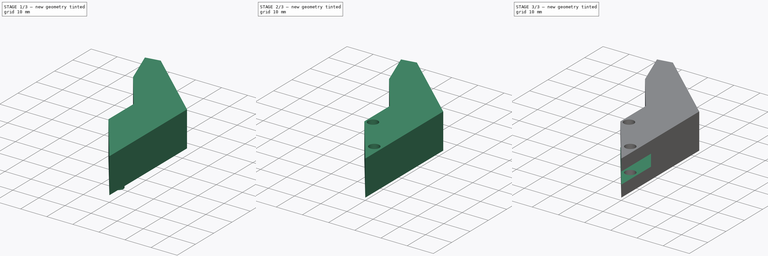
[diagram: build sequence overview — one tinted view per stage of 3, left to right]
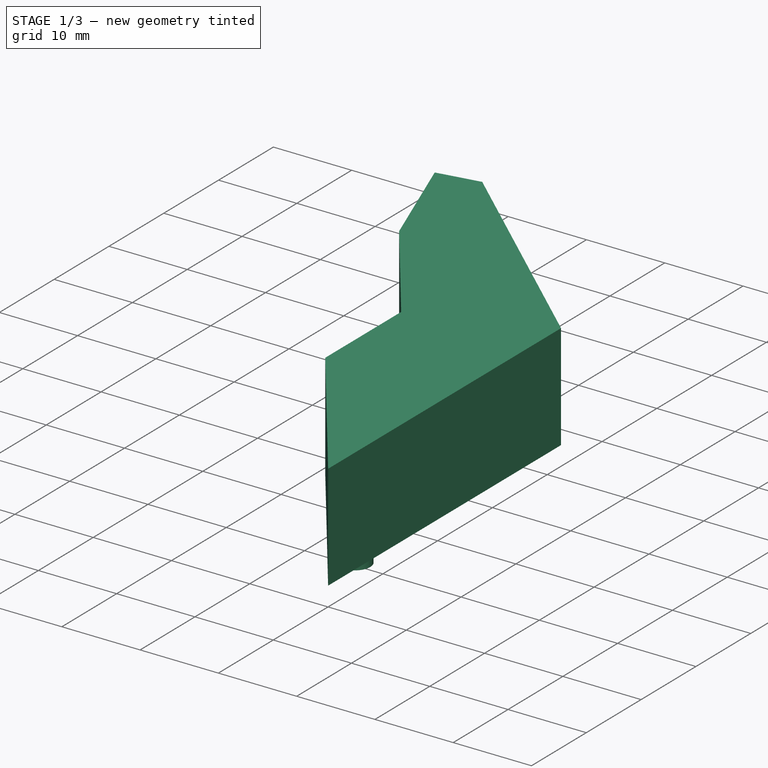
[diagram: stage 1 of 3 — iso view after this stage's code; geometry added in this stage tinted green]
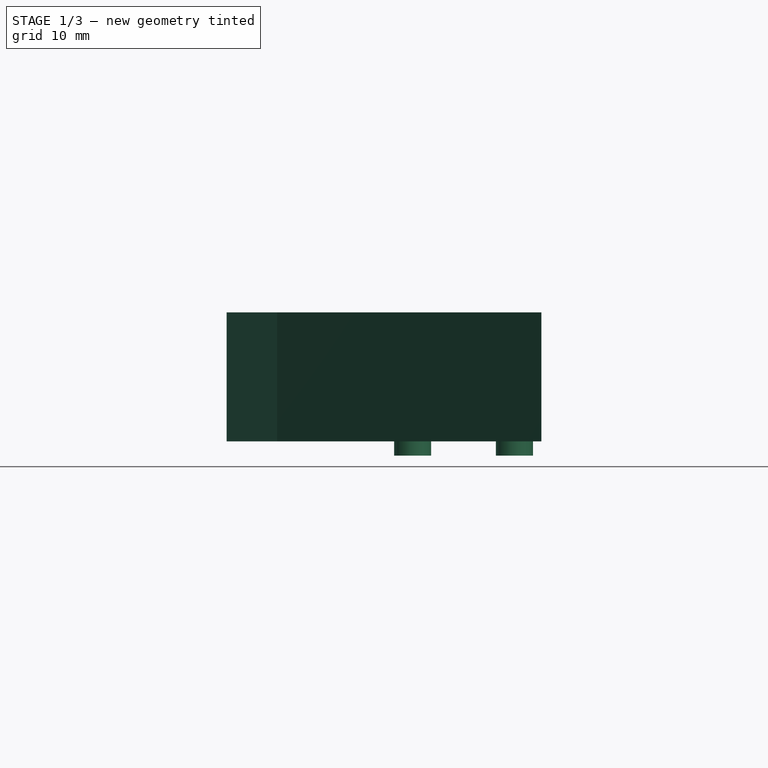
[diagram: stage 1 of 3 — front view after this stage's code; geometry added in this stage tinted green]
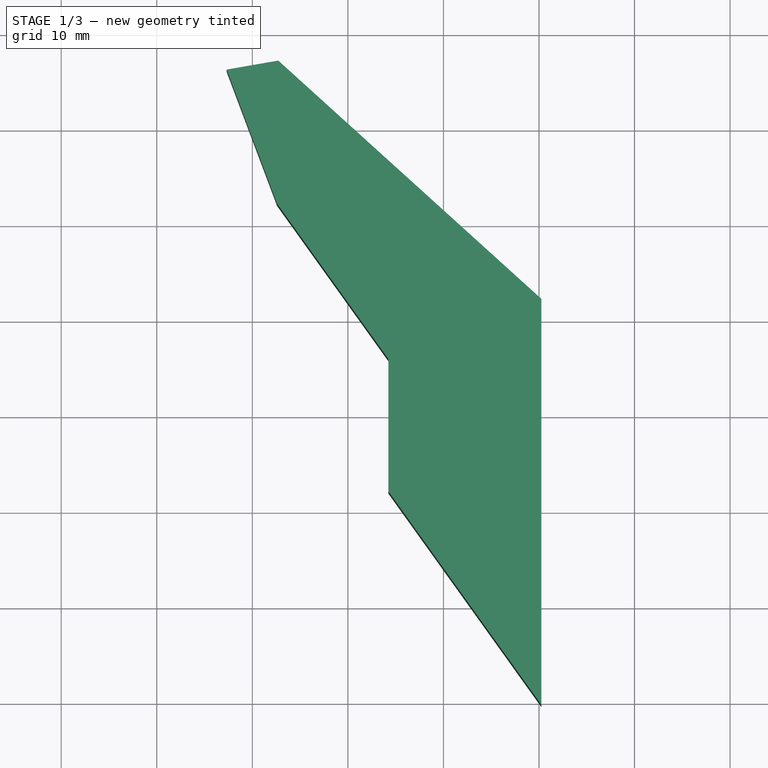
[diagram: stage 1 of 3 — top view after this stage's code; geometry added in this stage tinted green]
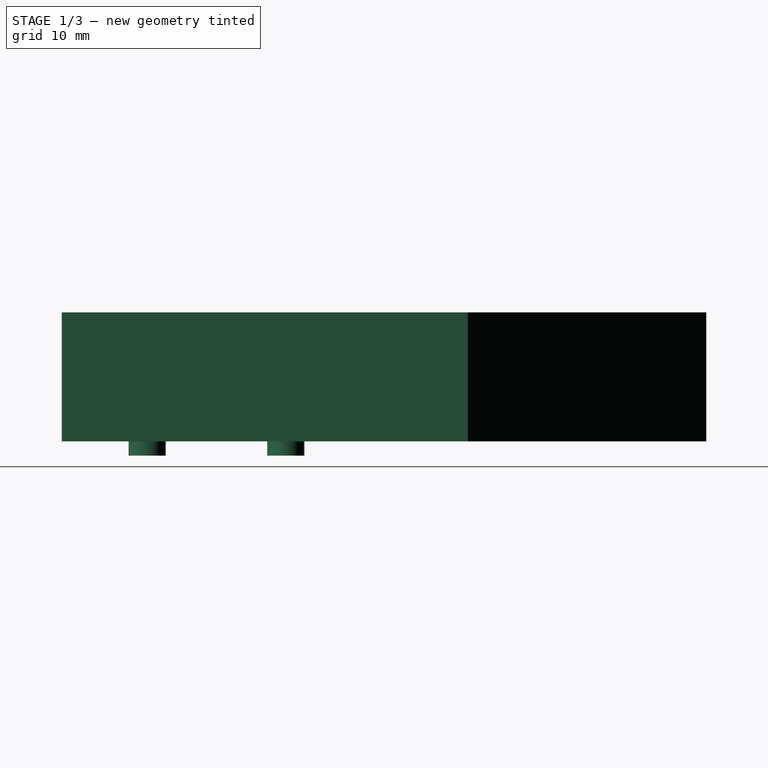
[diagram: stage 1 of 3 — right view after this stage's code; geometry added in this stage tinted green]
FCSTD DOCUMENT  (FreeCAD 0.20R29410 (Git))
Label: Eslabon3.1
License: All rights reserved
LicenseURL: http://en.wikipedia.org/wiki/All_rights_reserved
objects: Sketcher::SketchObject×3, Part::Extrusion×3, Part::Cut×2
note: 8 computed .brp shape members not serialized (recipe doc carries the construction recipe); baked Part::Feature solids carry a one-line shape summary decoded from their .brp

FEATURE [Sketcher::SketchObject] Sketch002  label="Holes r1.94mm"
  FullyConstrained = false
  MapMode = 5
  Placement = pos=(0,0,13.5) rot=(0,0,1;0rad)
  sketch-geometry (2):
    g0: Circle CenterX=36.7751 CenterY=43.1053 CenterZ=0 NormalX=0 NormalY=0 NormalZ=1 AngleXU=0 Radius=1.94
    g1: Circle CenterX=47.4316 CenterY=28.5988 CenterZ=0 NormalX=0 NormalY=0 NormalZ=1 AngleXU=0 Radius=1.94
  constraints (3):
    c: Radius(g0) = 1.94
    c: Equal(g0,g1)
    c: Distance(g0,g1) = 18
FEATURE [Part::Extrusion] Extrude002
  Base = -> Sketch002
  Dir = (0,0,1)
  DirMode = 2
  FaceMakerClass = Part::FaceMakerBullseye
  LengthFwd = 15
  LengthRev = 0
  Reversed = true
  Solid = true
  Symmetric = false
FEATURE [Part::Extrusion] Extrude
  Base = -> Sketch
  Dir = (0,0,1)
  DirMode = 2
  FaceMakerClass = Part::FaceMakerBullseye
  LengthFwd = 13.5
  LengthRev = 0
  Solid = true
  Symmetric = false
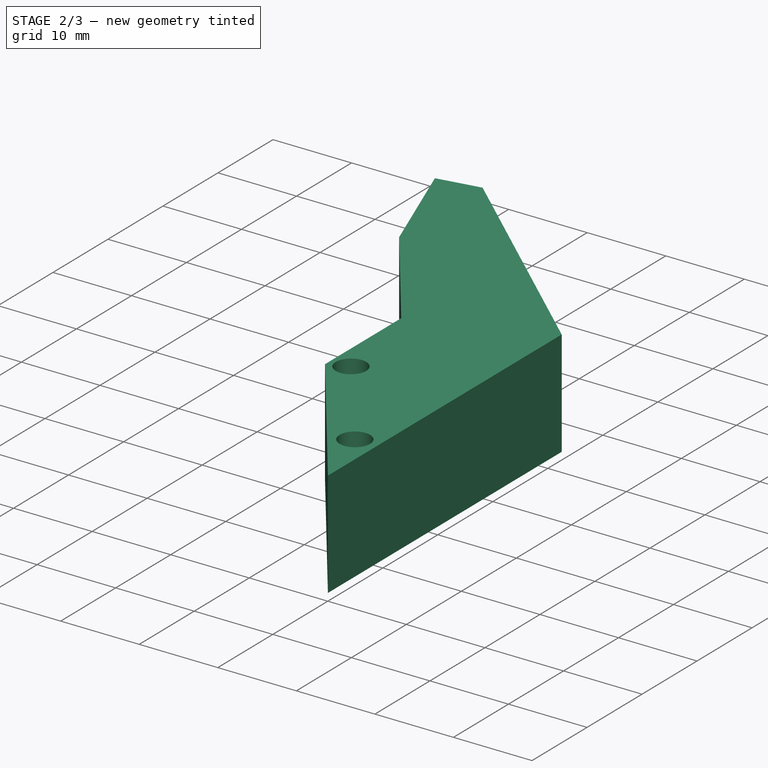
[diagram: stage 2 of 3 — iso view after this stage's code; geometry added in this stage tinted green]
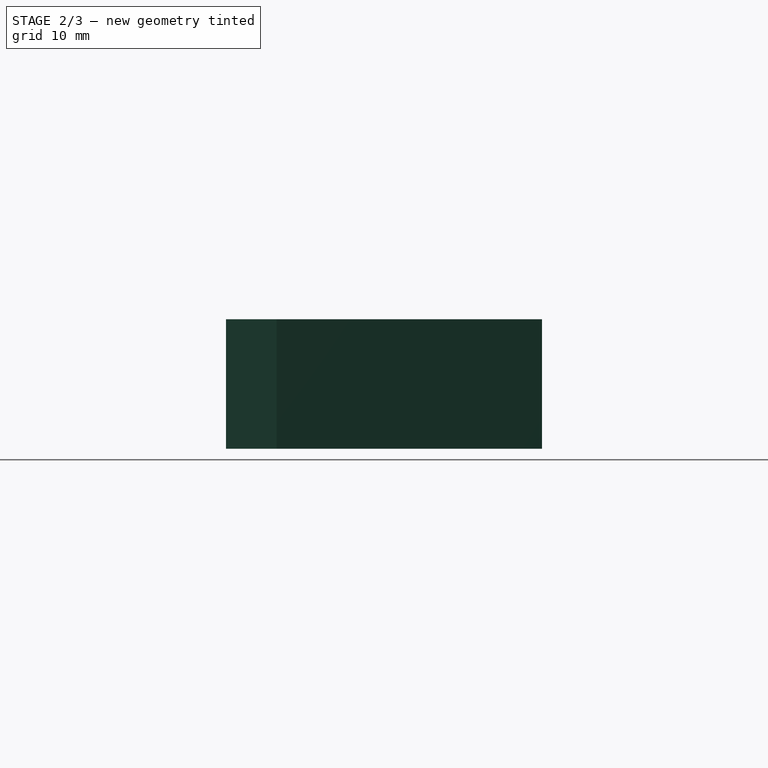
[diagram: stage 2 of 3 — front view after this stage's code; geometry added in this stage tinted green]
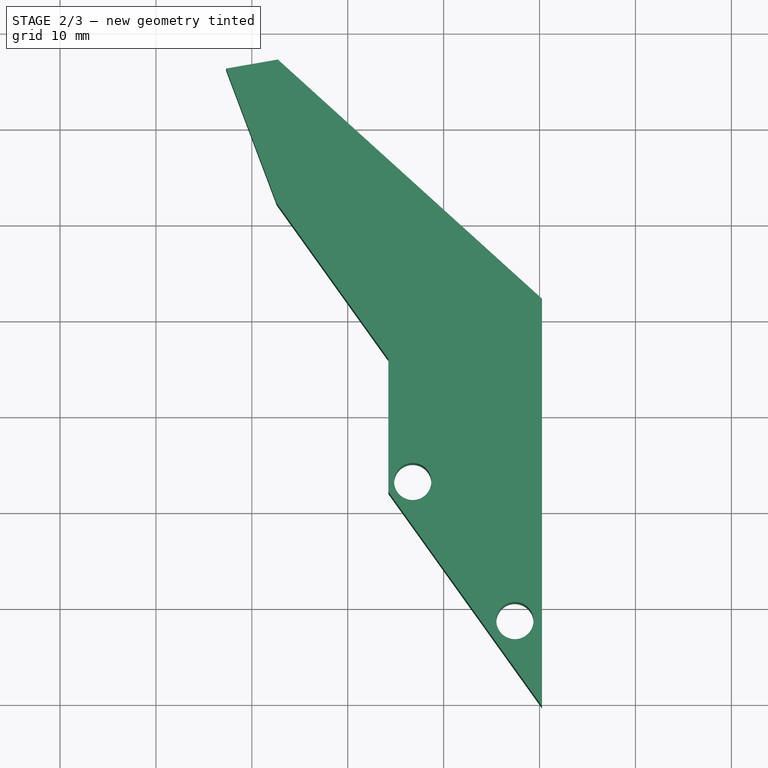
[diagram: stage 2 of 3 — top view after this stage's code; geometry added in this stage tinted green]
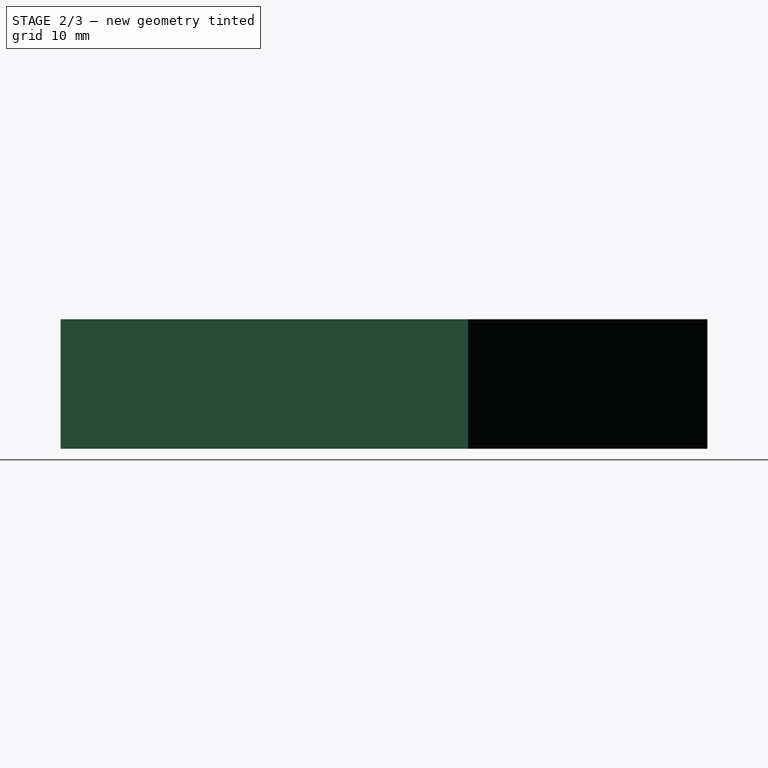
[diagram: stage 2 of 3 — right view after this stage's code; geometry added in this stage tinted green]
FEATURE [Part::Cut] Cut
  Base = -> Extrude
  Refine = true
  Tool = -> Extrude002
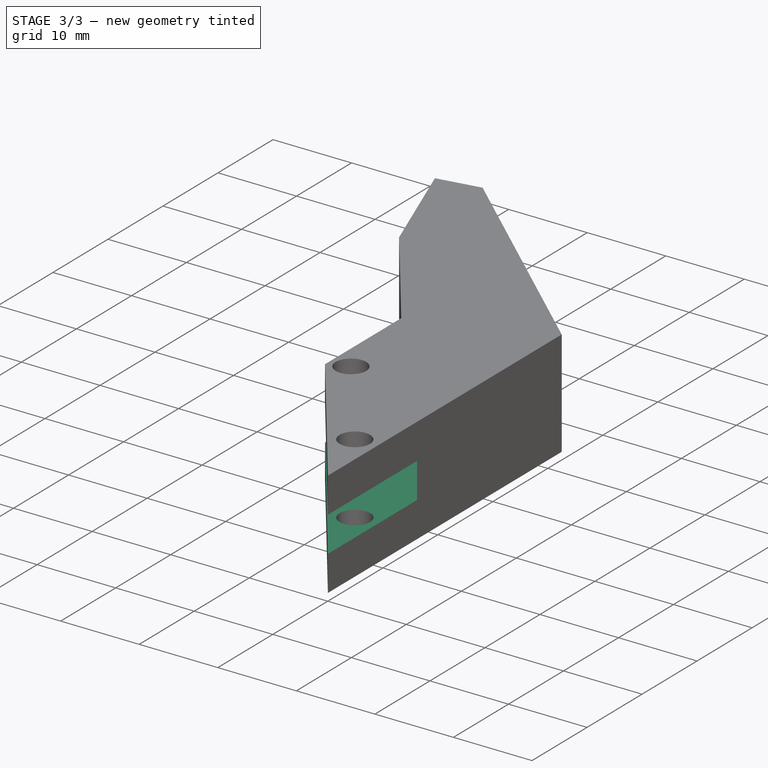
[diagram: stage 3 of 3 — iso view after this stage's code; geometry added in this stage tinted green]
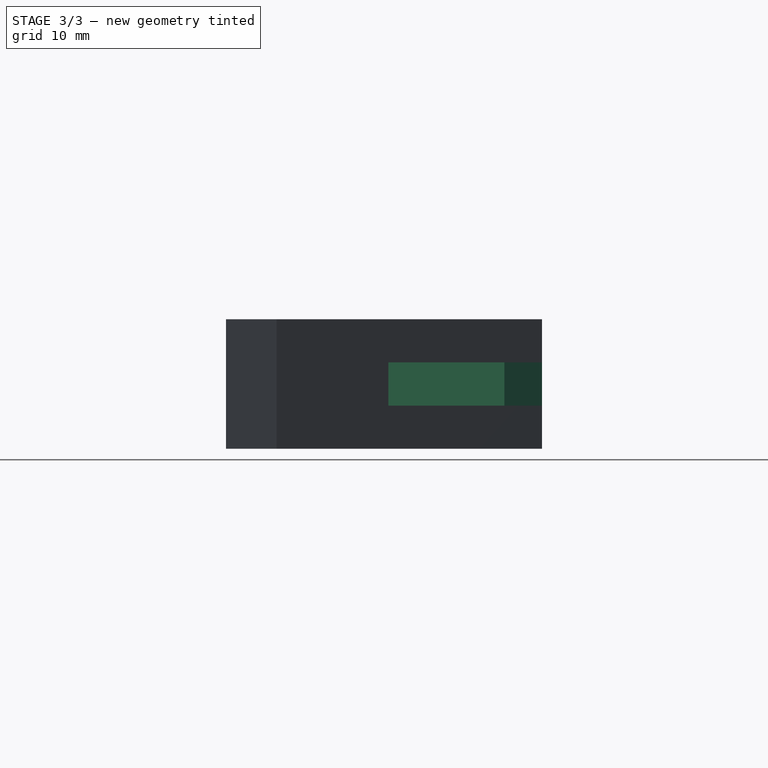
[diagram: stage 3 of 3 — front view after this stage's code; geometry added in this stage tinted green]
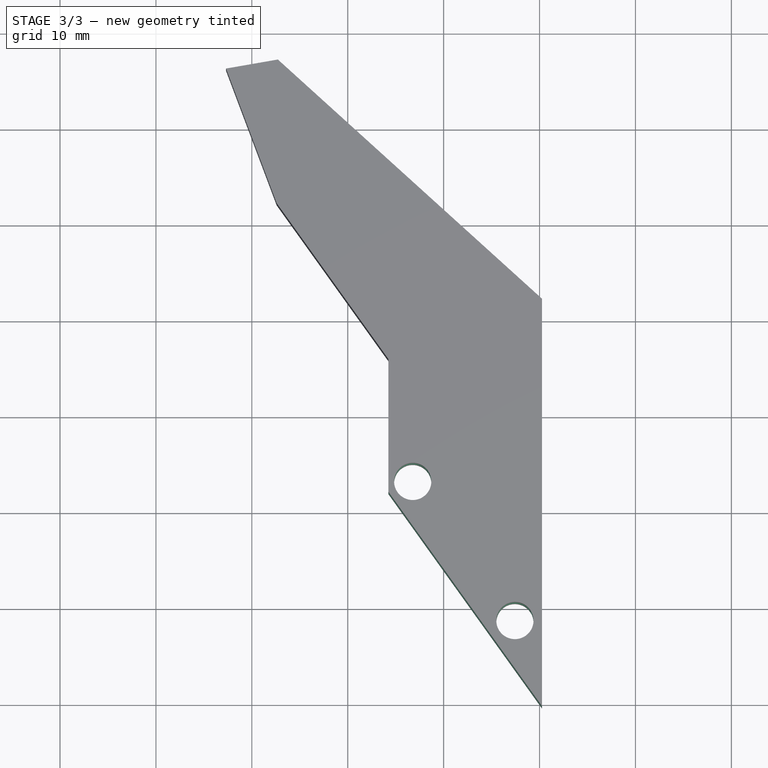
[diagram: stage 3 of 3 — top view after this stage's code; geometry added in this stage tinted green]
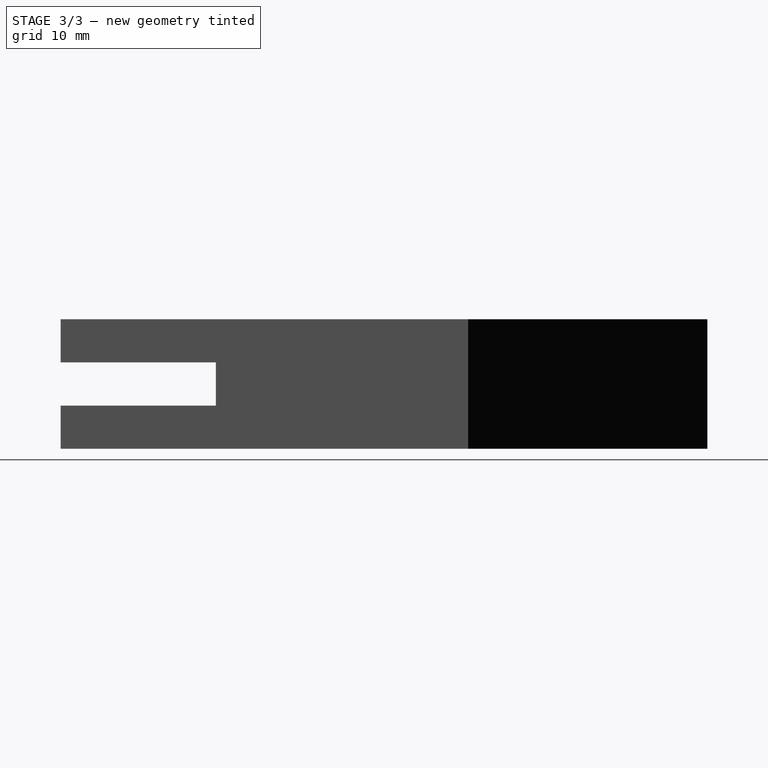
[diagram: stage 3 of 3 — right view after this stage's code; geometry added in this stage tinted green]
FEATURE [Sketcher::SketchObject] Sketch  label="Grip1"
  FullyConstrained = false
  sketch-geometry (7):
    g0: LineSegment StartX=34.2391 StartY=42.0149 StartZ=0 EndX=50.2553 EndY=19.6602 EndZ=0
    g1: LineSegment StartX=17.3085 StartY=86.1627 StartZ=0 EndX=22.7165 EndY=87.1049 EndZ=0
    g2: LineSegment StartX=22.7165 StartY=87.1049 StartZ=0 EndX=50.2553 EndY=62.1602 EndZ=0
    g3: LineSegment StartX=50.2553 StartY=62.1602 StartZ=0 EndX=50.2553 EndY=19.6602 EndZ=0
    g4: LineSegment StartX=17.3085 StartY=86.1627 StartZ=0 EndX=22.591 EndY=72.1236 EndZ=0
    g5: LineSegment StartX=22.591 StartY=72.1236 StartZ=0 EndX=34.2391 EndY=55.8657 EndZ=0
    g6: LineSegment StartX=34.2391 StartY=55.8657 StartZ=0 EndX=34.2391 EndY=42.0149 EndZ=0
  constraints (16):
    c: Distance(g0) = 27.5
    c: Coincident(g2,g1)
    c: Coincident(g3,g2)
    c: Vertical(g3)
    c: Coincident(g4,g1)
    c: Coincident(g6,g5)
    c: Vertical(g6)
    c: Coincident(g5,g4)
    c: Distance(g3) = 42.5
    c: Distance(g4) = 15
    c: Angle(g5,g4) = 2.87979
    c: Angle(g3,g0) = 0.621686
    c: Coincident(g0,g6)
    c: Coincident(g3,g0)
    c: Parallel(g0,g5)
    c: Distance(g5) = 20
FEATURE [Sketcher::SketchObject] Sketch001  label="Agujero 12x21"
  FullyConstrained = false
  MapMode = 5
  Placement = pos=(24.6979,-0.99459,0) rot=(-0.56186,0.584942,0.584942;4.1654rad)
  sketch-geometry (4):
    g0: LineSegment StartX=-11.0939 StartY=9 StartZ=0 EndX=-46.0939 EndY=9 EndZ=0
    g1: LineSegment StartX=-46.0939 StartY=9 StartZ=0 EndX=-46.0939 EndY=4.5 EndZ=0
    g2: LineSegment StartX=-46.0939 StartY=4.5 StartZ=0 EndX=-11.0939 EndY=4.5 EndZ=0
    g3: LineSegment StartX=-11.0939 StartY=4.5 StartZ=0 EndX=-11.0939 EndY=9 EndZ=0
  constraints (12):
    c: Horizontal(g0)
    c: Coincident(g1,g0)
    c: Vertical(g1)
    c: Horizontal(g2)
    c: Coincident(g3,g2)
    c: Coincident(g3,g0)
    c: Equal(g0,g2)
    c: Equal(g1,g3)
    c: Vertical(g3)
    c: DistanceX(g0,g0) = 35
    c: DistanceY(g3,g3) = 4.5
    c: DistanceY(g-1,g2) = 4.5
FEATURE [Part::Extrusion] Extrude001
  Base = -> Sketch001
  Dir = (-0.99919,0.0402376,0)
  DirMode = 2
  FaceMakerClass = Part::FaceMakerBullseye
  LengthFwd = 15
  LengthRev = 0
  Placement = pos=(17.7148,-0.429705,0) rot=(0,0,1;0.261799rad)
  Reversed = true
  Solid = true
  Symmetric = false
FEATURE [Part::Cut] Cut001
  Base = -> Cut
  Refine = true
  Tool = -> Extrude001
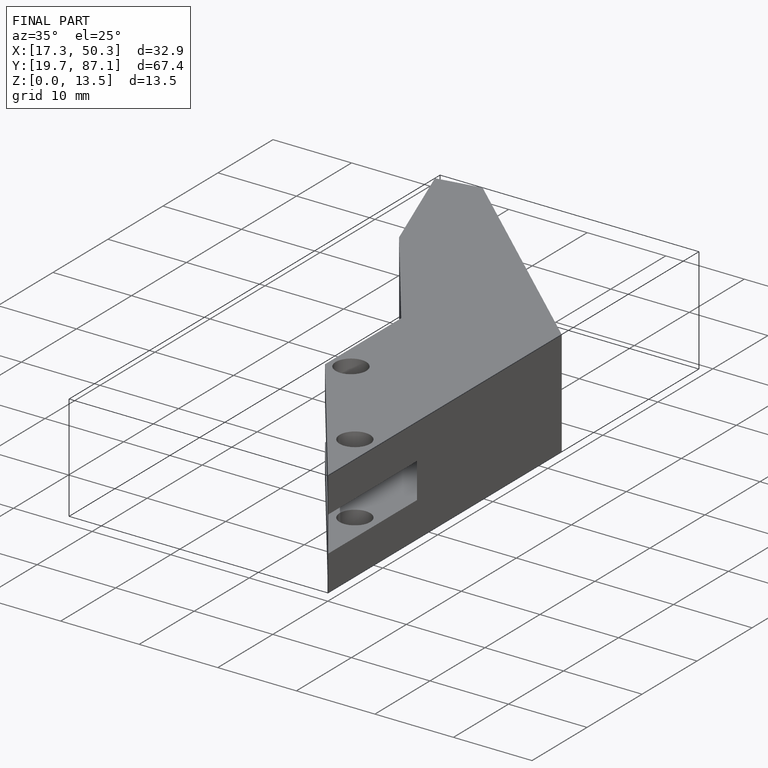
[diagram: finished part — iso view with bounding-box wireframe]
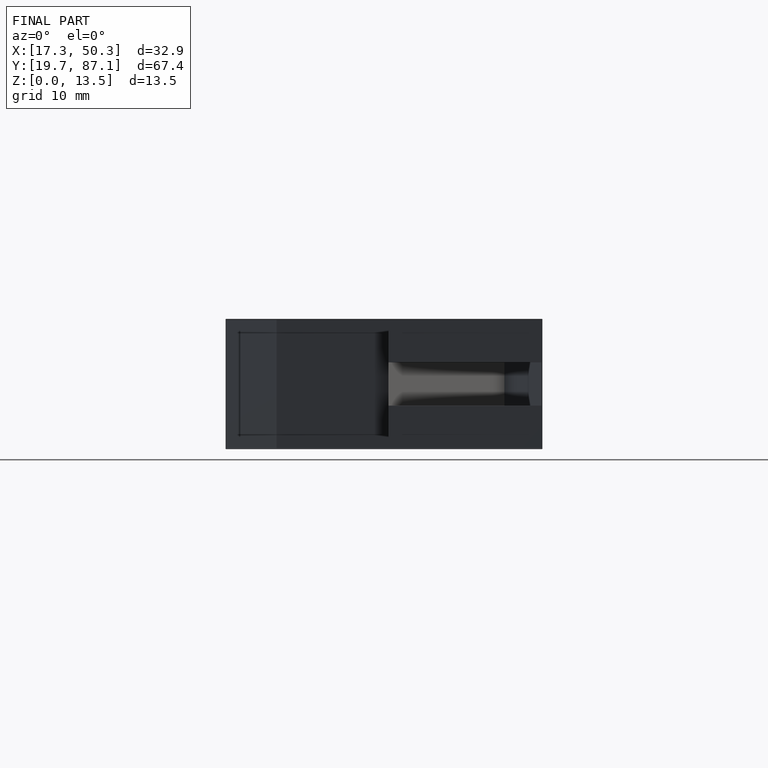
[diagram: finished part — front view with bounding-box wireframe]
